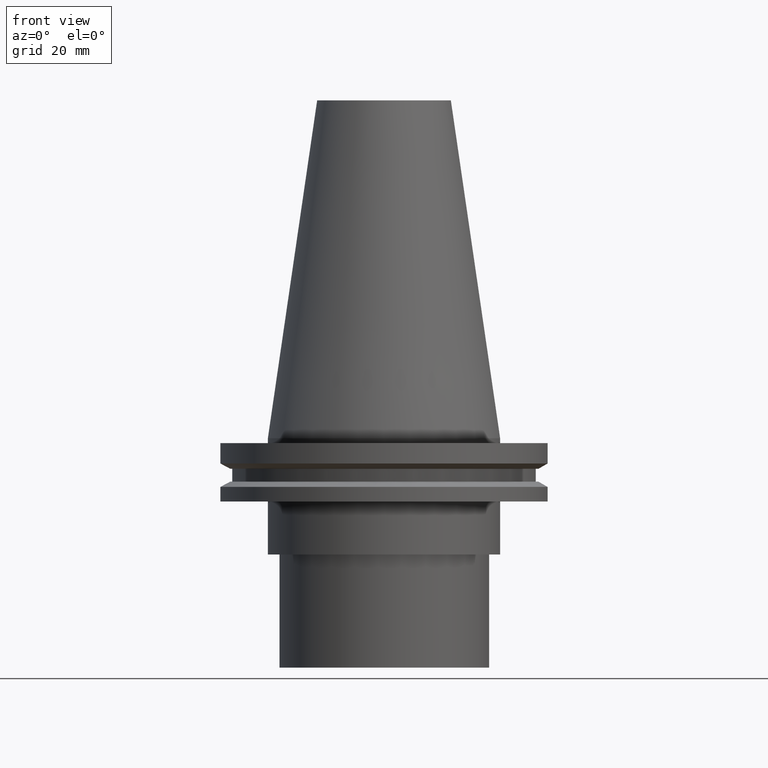
[diagram: clean part render]
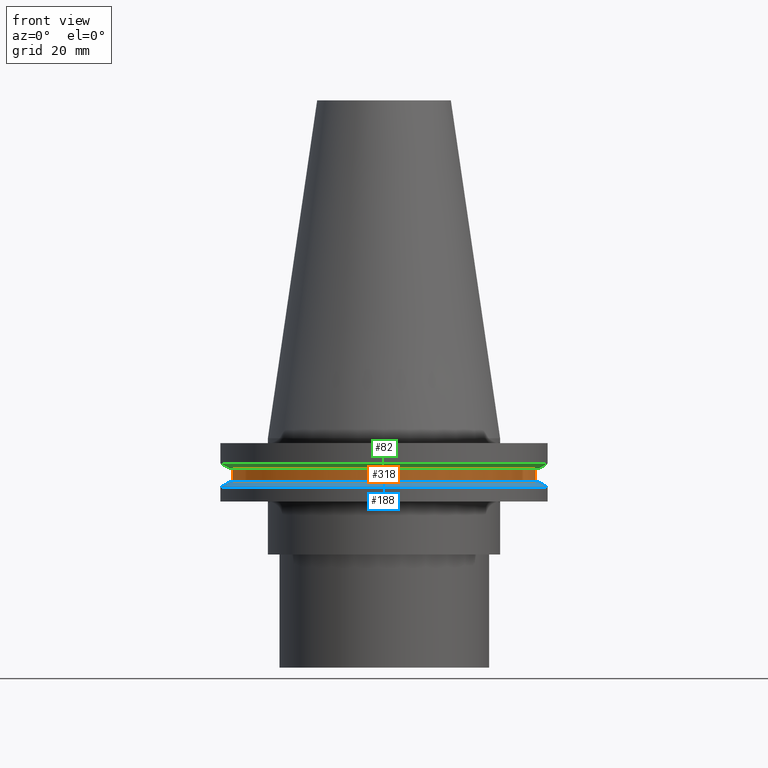
[diagram: same view with three faces highlighted in distinct colors, each labeled with its STEP entity id]
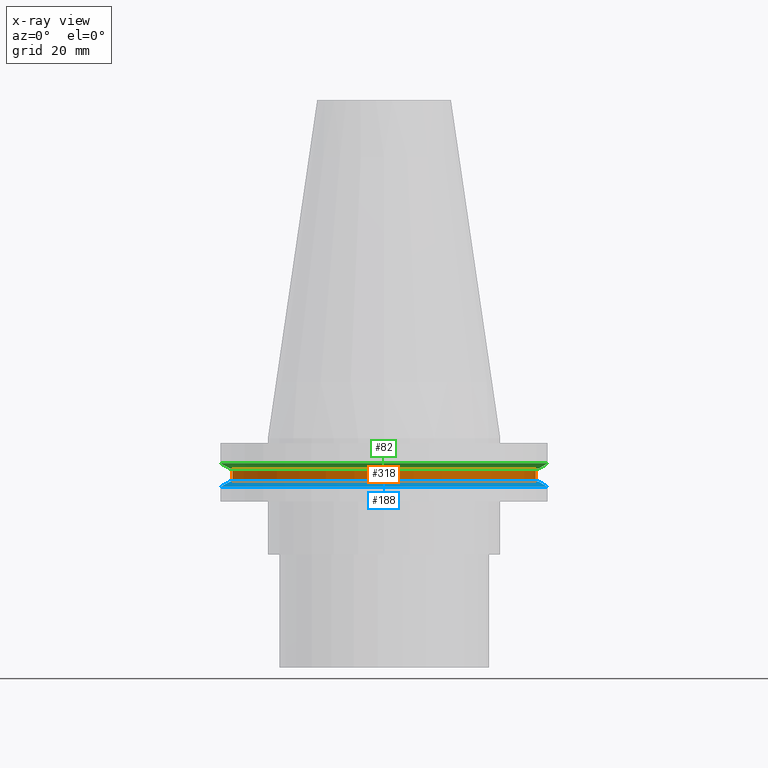
[diagram: x-ray of the same camera — body ghosted, the three highlighted faces saturated]
A machine part, front view with three faces highlighted in distinct colors.
The next image is the same camera in x-ray (body ghosted, the three faces saturated) — at least one of them is partly hidden behind the body in this view.
Their STEP definitions:

[orange] entity #318 — the highlighted cylindrical surface (bore or boss wall) has radius 45.645 mm, axis along (-0, -0, 1).
#10 = CARTESIAN_POINT ( 'NONE',  ( 0.000000000000000000, 0.000000000000000000, -9.204999999999991189 ) ) ;
#53 = CIRCLE ( 'NONE', #360, 45.64500000000000313 ) ;
#71 = DIRECTION ( 'NONE',  ( 1.000000000000000000, 0.000000000000000000, 0.000000000000000000 ) ) ;
#105 = FACE_OUTER_BOUND ( 'NONE', #254, .T. ) ;
#112 = ORIENTED_EDGE ( 'NONE', *, *, #224, .F. ) ;
#119 = EDGE_LOOP ( 'NONE', ( #367 ) ) ;
#130 = DIRECTION ( 'NONE',  ( -0.000000000000000000, -0.000000000000000000, 1.000000000000000000 ) ) ;
#138 = DIRECTION ( 'NONE',  ( -0.000000000000000000, -0.000000000000000000, 1.000000000000000000 ) ) ;
#150 = CARTESIAN_POINT ( 'NONE',  ( 45.64500000000000313, 0.000000000000000000, -9.204999999999991189 ) ) ;
#168 = FACE_OUTER_BOUND ( 'NONE', #119, .T. ) ;
#182 = CARTESIAN_POINT ( 'NONE',  ( 45.64500000000000313, 0.000000000000000000, -13.05499999999999794 ) ) ;
#185 = AXIS2_PLACEMENT_3D ( 'NONE', #289, #138, #71 ) ;
#216 = EDGE_CURVE ( 'NONE', #269, #269, #53, .T. ) ;
#224 = EDGE_CURVE ( 'NONE', #301, #301, #240, .T. ) ;
#240 = CIRCLE ( 'NONE', #272, 45.64500000000000313 ) ;
#244 = CARTESIAN_POINT ( 'NONE',  ( 0.000000000000000000, 0.000000000000000000, -13.05499999999999794 ) ) ;
#254 = EDGE_LOOP ( 'NONE', ( #112 ) ) ;
#269 = VERTEX_POINT ( 'NONE', #182 ) ;
#272 = AXIS2_PLACEMENT_3D ( 'NONE', #10, #130, #375 ) ;
#289 = CARTESIAN_POINT ( 'NONE',  ( 0.000000000000000000, 0.000000000000000000, 101.5999999999999943 ) ) ;
#301 = VERTEX_POINT ( 'NONE', #150 ) ;
#318 = ADVANCED_FACE ( 'NONE', ( #105, #168 ), #323, .T. ) ;
#323 = CYLINDRICAL_SURFACE ( 'NONE', #185, 45.64500000000000313 ) ;
#341 = DIRECTION ( 'NONE',  ( 1.000000000000000000, 0.000000000000000000, 0.000000000000000000 ) ) ;
#360 = AXIS2_PLACEMENT_3D ( 'NONE', #244, #369, #341 ) ;
#367 = ORIENTED_EDGE ( 'NONE', *, *, #216, .T. ) ;
#369 = DIRECTION ( 'NONE',  ( -0.000000000000000000, -0.000000000000000000, 1.000000000000000000 ) ) ;
#375 = DIRECTION ( 'NONE',  ( 1.000000000000000000, 0.000000000000000000, 0.000000000000000000 ) ) ;

[blue] entity #188 — the highlighted conical surface has half-angle 60 deg.
#2 = DIRECTION ( 'NONE',  ( 0.000000000000000000, 0.000000000000000000, -1.000000000000000000 ) ) ;
#38 = CARTESIAN_POINT ( 'NONE',  ( 0.000000000000000000, 0.000000000000000000, -13.05499999999999794 ) ) ;
#87 = CARTESIAN_POINT ( 'NONE',  ( 46.43919780457007818, 0.000000000000000000, -13.05499999999999794 ) ) ;
#92 = VERTEX_POINT ( 'NONE', #87 ) ;
#96 = CIRCLE ( 'NONE', #102, 49.21499999999998920 ) ;
#99 = FACE_OUTER_BOUND ( 'NONE', #209, .T. ) ;
#102 = AXIS2_PLACEMENT_3D ( 'NONE', #261, #196, #383 ) ;
#162 = DIRECTION ( 'NONE',  ( 1.000000000000000000, 0.000000000000000000, 0.000000000000000000 ) ) ;
#188 = ADVANCED_FACE ( 'NONE', ( #191, #99 ), #385, .T. ) ;
#191 = FACE_BOUND ( 'NONE', #271, .T. ) ;
#193 = CARTESIAN_POINT ( 'NONE',  ( 0.000000000000000000, 0.000000000000000000, -14.65761014474876944 ) ) ;
#196 = DIRECTION ( 'NONE',  ( -0.000000000000000000, -0.000000000000000000, 1.000000000000000000 ) ) ;
#200 = EDGE_CURVE ( 'NONE', #92, #92, #210, .T. ) ;
#207 = VERTEX_POINT ( 'NONE', #234 ) ;
#209 = EDGE_LOOP ( 'NONE', ( #379 ) ) ;
#210 = CIRCLE ( 'NONE', #217, 46.43919780457007818 ) ;
#217 = AXIS2_PLACEMENT_3D ( 'NONE', #38, #275, #162 ) ;
#234 = CARTESIAN_POINT ( 'NONE',  ( 49.21499999999998920, 0.000000000000000000, -14.65761014474876944 ) ) ;
#259 = AXIS2_PLACEMENT_3D ( 'NONE', #193, #2, #313 ) ;
#261 = CARTESIAN_POINT ( 'NONE',  ( 0.000000000000000000, 0.000000000000000000, -14.65761014474876944 ) ) ;
#271 = EDGE_LOOP ( 'NONE', ( #294 ) ) ;
#275 = DIRECTION ( 'NONE',  ( -0.000000000000000000, -0.000000000000000000, 1.000000000000000000 ) ) ;
#294 = ORIENTED_EDGE ( 'NONE', *, *, #200, .F. ) ;
#313 = DIRECTION ( 'NONE',  ( -1.000000000000000000, 0.000000000000000000, 0.000000000000000000 ) ) ;
#370 = EDGE_CURVE ( 'NONE', #207, #207, #96, .T. ) ;
#379 = ORIENTED_EDGE ( 'NONE', *, *, #370, .T. ) ;
#383 = DIRECTION ( 'NONE',  ( 1.000000000000000000, 0.000000000000000000, 0.000000000000000000 ) ) ;
#385 = CONICAL_SURFACE ( 'NONE', #259, 49.21499999999998920, 1.047197551196554333 ) ;

[green] entity #82 — the highlighted conical surface has half-angle 60 deg.
#51 = EDGE_LOOP ( 'NONE', ( #91 ) ) ;
#54 = CARTESIAN_POINT ( 'NONE',  ( 46.43919780457007818, 0.000000000000000000, -9.204999999999991189 ) ) ;
#70 = DIRECTION ( 'NONE',  ( 1.000000000000000000, 0.000000000000000000, 0.000000000000000000 ) ) ;
#82 = ADVANCED_FACE ( 'NONE', ( #346, #377 ), #245, .T. ) ;
#91 = ORIENTED_EDGE ( 'NONE', *, *, #284, .T. ) ;
#97 = DIRECTION ( 'NONE',  ( -0.000000000000000000, -0.000000000000000000, 1.000000000000000000 ) ) ;
#101 = CARTESIAN_POINT ( 'NONE',  ( 0.000000000000000000, 0.000000000000000000, -7.602389855251287187 ) ) ;
#113 = CIRCLE ( 'NONE', #312, 49.21500000000000341 ) ;
#120 = AXIS2_PLACEMENT_3D ( 'NONE', #283, #226, #319 ) ;
#133 = AXIS2_PLACEMENT_3D ( 'NONE', #247, #97, #189 ) ;
#152 = CIRCLE ( 'NONE', #120, 46.43919780457007818 ) ;
#189 = DIRECTION ( 'NONE',  ( 1.000000000000000000, 0.000000000000000000, 0.000000000000000000 ) ) ;
#223 = DIRECTION ( 'NONE',  ( -0.000000000000000000, -0.000000000000000000, 1.000000000000000000 ) ) ;
#226 = DIRECTION ( 'NONE',  ( -0.000000000000000000, -0.000000000000000000, 1.000000000000000000 ) ) ;
#227 = EDGE_CURVE ( 'NONE', #299, #299, #113, .T. ) ;
#245 = CONICAL_SURFACE ( 'NONE', #133, 46.43919780457007818, 1.047197551196575205 ) ;
#247 = CARTESIAN_POINT ( 'NONE',  ( 0.000000000000000000, 0.000000000000000000, -9.204999999999991189 ) ) ;
#283 = CARTESIAN_POINT ( 'NONE',  ( 0.000000000000000000, 0.000000000000000000, -9.204999999999991189 ) ) ;
#284 = EDGE_CURVE ( 'NONE', #330, #330, #152, .T. ) ;
#299 = VERTEX_POINT ( 'NONE', #354 ) ;
#312 = AXIS2_PLACEMENT_3D ( 'NONE', #101, #223, #70 ) ;
#319 = DIRECTION ( 'NONE',  ( 1.000000000000000000, 0.000000000000000000, 0.000000000000000000 ) ) ;
#330 = VERTEX_POINT ( 'NONE', #54 ) ;
#336 = EDGE_LOOP ( 'NONE', ( #358 ) ) ;
#346 = FACE_OUTER_BOUND ( 'NONE', #336, .T. ) ;
#354 = CARTESIAN_POINT ( 'NONE',  ( 49.21500000000000341, 0.000000000000000000, -7.602389855251287187 ) ) ;
#358 = ORIENTED_EDGE ( 'NONE', *, *, #227, .F. ) ;
#377 = FACE_BOUND ( 'NONE', #51, .T. ) ;